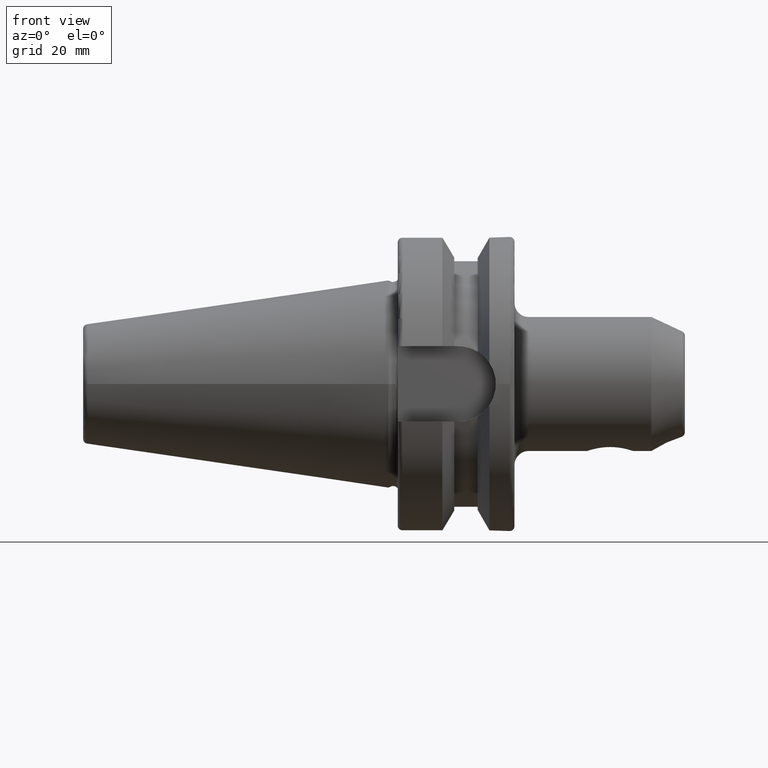
[diagram: clean part render]
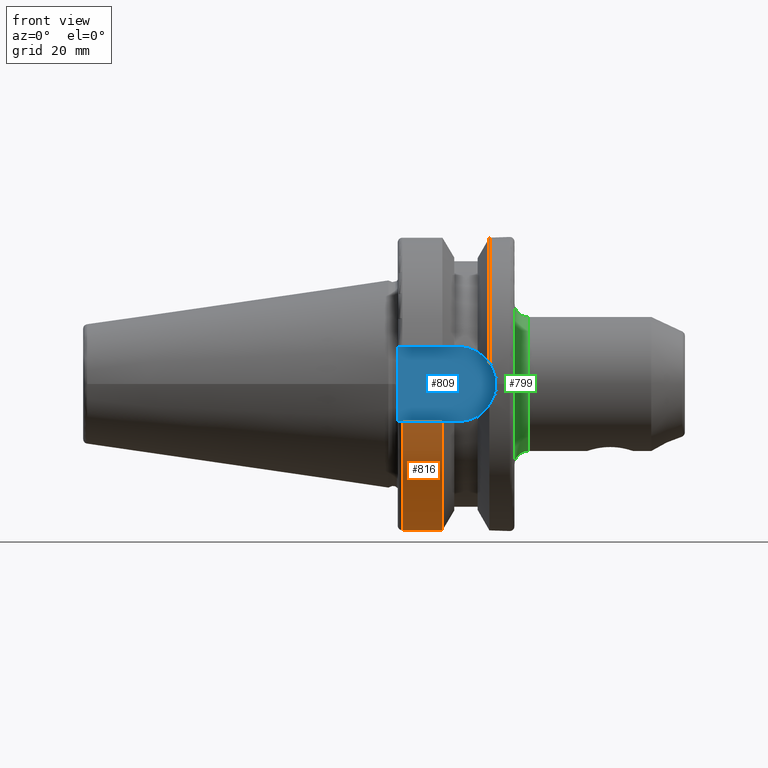
[diagram: same view with three faces highlighted in distinct colors, each labeled with its STEP entity id]
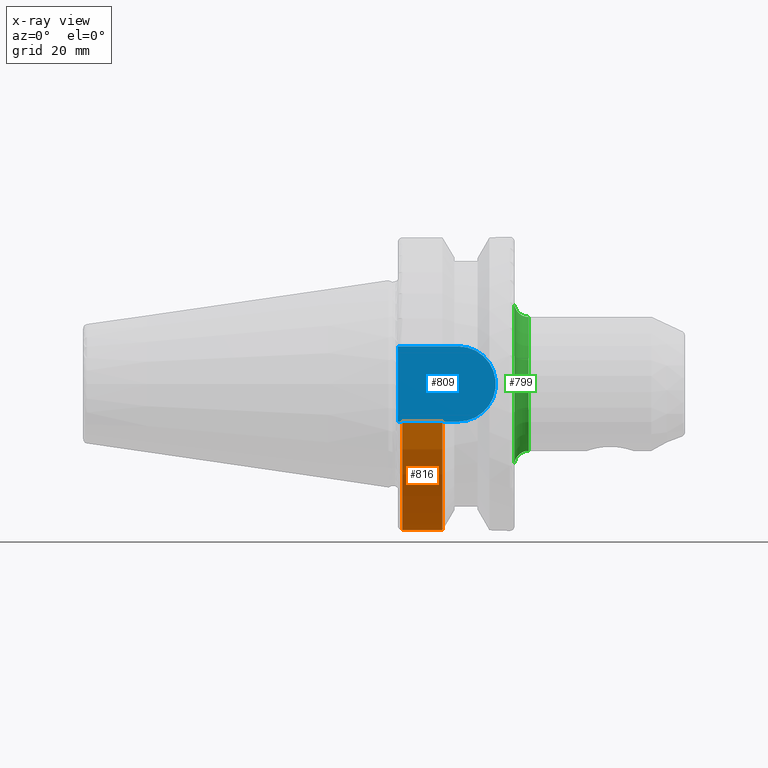
[diagram: x-ray of the same camera — body ghosted, the three highlighted faces saturated]
A machine part, front view with three faces highlighted in distinct colors.
The next image is the same camera in x-ray (body ghosted, the three faces saturated) — at least one of them is partly hidden behind the body in this view.
Their STEP definitions:

[orange] entity #816 — the highlighted cylindrical surface (partial cylindrical patch) has radius 31.5 mm, axis along (1, 0, 0).
#84=CIRCLE('',#912,31.5000000000001);
#85=CIRCLE('',#914,31.5);
#121=CYLINDRICAL_SURFACE('',#913,31.5);
#151=FACE_OUTER_BOUND('',#204,.T.);
#204=EDGE_LOOP('',(#664,#665,#666,#667));
#273=LINE('',#1578,#319);
#280=LINE('',#1643,#326);
#319=VECTOR('',#1054,10.);
#326=VECTOR('',#1097,10.);
#382=VERTEX_POINT('',#1566);
#383=VERTEX_POINT('',#1577);
#394=VERTEX_POINT('',#1635);
#395=VERTEX_POINT('',#1641);
#474=EDGE_CURVE('',#383,#382,#273,.T.);
#493=EDGE_CURVE('',#383,#394,#84,.T.);
#495=EDGE_CURVE('',#382,#395,#85,.T.);
#496=EDGE_CURVE('',#395,#394,#280,.T.);
#664=ORIENTED_EDGE('',*,*,#474,.T.);
#665=ORIENTED_EDGE('',*,*,#495,.T.);
#666=ORIENTED_EDGE('',*,*,#496,.T.);
#667=ORIENTED_EDGE('',*,*,#493,.F.);
#816=ADVANCED_FACE('',(#151),#121,.T.);
#912=AXIS2_PLACEMENT_3D('',#1636,#1091,#1092);
#913=AXIS2_PLACEMENT_3D('',#1640,#1093,#1094);
#914=AXIS2_PLACEMENT_3D('',#1642,#1095,#1096);
#1054=DIRECTION('',(-1.,0.,0.));
#1091=DIRECTION('center_axis',(1.,0.,0.));
#1092=DIRECTION('ref_axis',(0.,0.,-1.));
#1093=DIRECTION('center_axis',(1.,0.,0.));
#1094=DIRECTION('ref_axis',(0.,1.,0.));
#1095=DIRECTION('center_axis',(1.,0.,0.));
#1096=DIRECTION('ref_axis',(0.,0.,-1.));
#1097=DIRECTION('',(1.,0.,0.));
#1566=CARTESIAN_POINT('',(2.99999999999999,-30.4540227227866,-8.05));
#1577=CARTESIAN_POINT('',(11.5690363073382,-30.4540227227866,-8.05));
#1578=CARTESIAN_POINT('',(7.28451815366907,-30.4540227227866,-8.05));
#1635=CARTESIAN_POINT('',(11.5690363073382,30.4540227227866,-8.05));
#1636=CARTESIAN_POINT('Origin',(11.5690363073382,0.,0.));
#1640=CARTESIAN_POINT('Origin',(7.28451815366907,0.,0.));
#1641=CARTESIAN_POINT('',(2.99999999999999,30.4540227227866,-8.05));
#1642=CARTESIAN_POINT('Origin',(2.99999999999999,0.,0.));
#1643=CARTESIAN_POINT('',(7.28451815366907,30.4540227227866,-8.05));

[blue] entity #809 — the highlighted planar face has unit normal (0, 1, 0).
#23=PLANE('',#897);
#75=CIRCLE('',#894,8.05);
#144=FACE_OUTER_BOUND('',#197,.T.);
#197=EDGE_LOOP('',(#629,#630,#631,#632));
#269=LINE('',#1558,#315);
#271=LINE('',#1563,#317);
#275=LINE('',#1585,#321);
#315=VECTOR('',#1048,10.);
#317=VECTOR('',#1052,10.);
#321=VECTOR('',#1058,10.);
#371=VERTEX_POINT('',#1529);
#372=VERTEX_POINT('',#1531);
#378=VERTEX_POINT('',#1556);
#380=VERTEX_POINT('',#1562);
#461=EDGE_CURVE('',#371,#372,#75,.T.);
#469=EDGE_CURVE('',#378,#371,#269,.T.);
#471=EDGE_CURVE('',#372,#380,#271,.T.);
#477=EDGE_CURVE('',#380,#378,#275,.T.);
#629=ORIENTED_EDGE('',*,*,#471,.F.);
#630=ORIENTED_EDGE('',*,*,#461,.F.);
#631=ORIENTED_EDGE('',*,*,#469,.F.);
#632=ORIENTED_EDGE('',*,*,#477,.F.);
#809=ADVANCED_FACE('',(#144),#23,.F.);
#894=AXIS2_PLACEMENT_3D('',#1532,#1039,#1040);
#897=AXIS2_PLACEMENT_3D('',#1584,#1056,#1057);
#1039=DIRECTION('center_axis',(0.,1.,0.));
#1040=DIRECTION('ref_axis',(0.,0.,1.));
#1048=DIRECTION('',(1.,0.,8.57315076930623E-17));
#1052=DIRECTION('',(-1.,0.,-8.57315076930623E-17));
#1056=DIRECTION('center_axis',(0.,1.,0.));
#1057=DIRECTION('ref_axis',(0.,0.,1.));
#1058=DIRECTION('',(0.,0.,1.));
#1529=CARTESIAN_POINT('',(14.95,-22.6,8.05));
#1531=CARTESIAN_POINT('',(14.95,-22.6,-8.05));
#1532=CARTESIAN_POINT('Origin',(14.95,-22.6,0.));
#1556=CARTESIAN_POINT('',(1.99999999999999,-22.6,8.05));
#1558=CARTESIAN_POINT('',(1.99999999999999,-22.6,8.05));
#1562=CARTESIAN_POINT('',(1.99999999999999,-22.6,-8.05));
#1563=CARTESIAN_POINT('',(14.95,-22.6,-8.05));
#1584=CARTESIAN_POINT('Origin',(12.5,-22.6,0.));
#1585=CARTESIAN_POINT('',(1.99999999999999,-22.6,0.));

[green] entity #799 — the highlighted toroidal blend (fillet) surface has major radius 17.35 mm and minor (blend) radius 3 mm.
#45=TOROIDAL_SURFACE('',#877,17.35,3.);
#60=CIRCLE('',#868,14.35);
#61=CIRCLE('',#869,14.35);
#66=CIRCLE('',#878,3.);
#67=CIRCLE('',#879,17.35);
#134=FACE_OUTER_BOUND('',#185,.T.);
#185=EDGE_LOOP('',(#571,#572,#573,#574,#575));
#349=VERTEX_POINT('',#1436);
#350=VERTEX_POINT('',#1438);
#354=VERTEX_POINT('',#1453);
#431=EDGE_CURVE('',#350,#349,#60,.T.);
#432=EDGE_CURVE('',#349,#350,#61,.T.);
#438=EDGE_CURVE('',#350,#354,#66,.T.);
#439=EDGE_CURVE('',#354,#354,#67,.T.);
#571=ORIENTED_EDGE('',*,*,#431,.T.);
#572=ORIENTED_EDGE('',*,*,#432,.T.);
#573=ORIENTED_EDGE('',*,*,#438,.T.);
#574=ORIENTED_EDGE('',*,*,#439,.T.);
#575=ORIENTED_EDGE('',*,*,#438,.F.);
#799=ADVANCED_FACE('',(#134),#45,.F.);
#868=AXIS2_PLACEMENT_3D('',#1439,#978,#979);
#869=AXIS2_PLACEMENT_3D('',#1440,#980,#981);
#877=AXIS2_PLACEMENT_3D('',#1452,#997,#998);
#878=AXIS2_PLACEMENT_3D('',#1454,#999,#1000);
#879=AXIS2_PLACEMENT_3D('',#1455,#1001,#1002);
#978=DIRECTION('center_axis',(-1.,0.,0.));
#979=DIRECTION('ref_axis',(0.,-1.22464679914735E-16,1.));
#980=DIRECTION('center_axis',(-1.,0.,0.));
#981=DIRECTION('ref_axis',(0.,-1.22464679914735E-16,1.));
#997=DIRECTION('center_axis',(-1.,0.,0.));
#998=DIRECTION('ref_axis',(0.,0.,1.));
#999=DIRECTION('center_axis',(0.,-1.,1.22464679914735E-16));
#1000=DIRECTION('ref_axis',(0.,-1.22464679914735E-16,-1.));
#1001=DIRECTION('center_axis',(1.,0.,0.));
#1002=DIRECTION('ref_axis',(0.,-1.22464679914735E-16,1.));
#1436=CARTESIAN_POINT('',(30.,-1.75736815677645E-15,14.35));
#1438=CARTESIAN_POINT('',(30.,0.,-14.35));
#1439=CARTESIAN_POINT('Origin',(30.,0.,0.));
#1440=CARTESIAN_POINT('Origin',(30.,0.,0.));
#1452=CARTESIAN_POINT('Origin',(30.,0.,0.));
#1453=CARTESIAN_POINT('',(27.,4.24952439304131E-15,-17.35));
#1454=CARTESIAN_POINT('Origin',(30.,-2.12476219652066E-15,-17.35));
#1455=CARTESIAN_POINT('Origin',(27.,0.,0.));